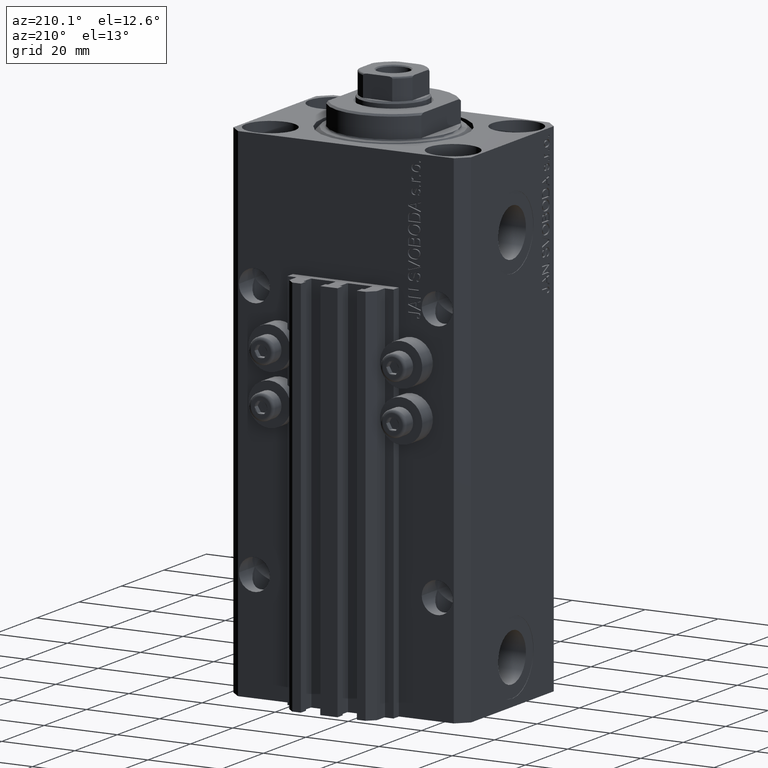
[diagram: clean part render]
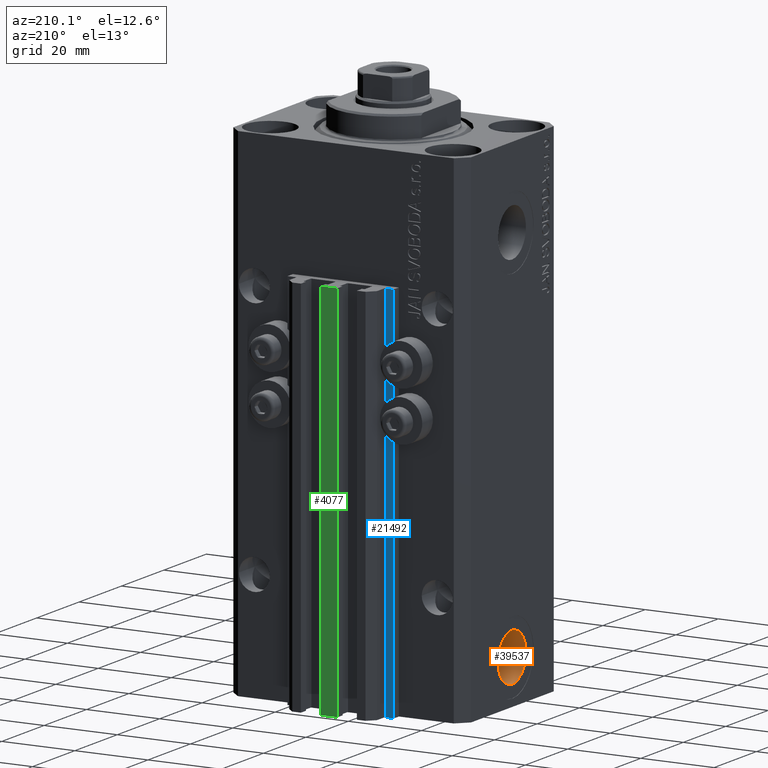
[diagram: same view with three faces highlighted in distinct colors, each labeled with its STEP entity id]
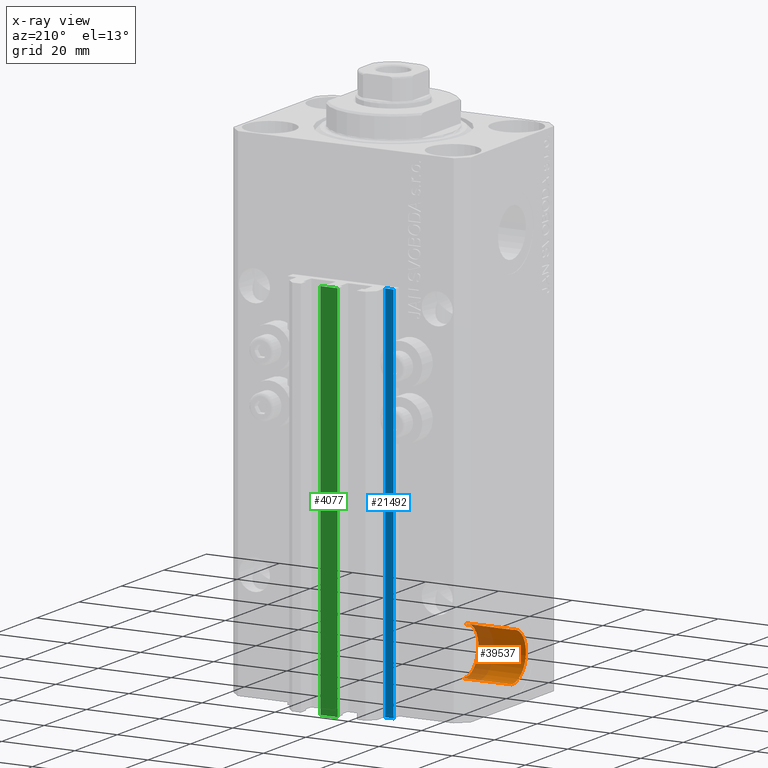
[diagram: x-ray of the same camera — body ghosted, the three highlighted faces saturated]
A machine part, auxiliary view with three faces highlighted in distinct colors.
The next image is the same camera in x-ray (body ghosted, the three faces saturated) — at least one of them is partly hidden behind the body in this view.
Their STEP definitions:

[orange] entity #39537 — the highlighted cylindrical surface (edge-blend (fillet) strip) has radius 6.58 mm, axis along (-1, -0, -0).
#2367 = VERTEX_POINT ( 'NONE', #29632 ) ;
#2925 = DIRECTION ( 'NONE',  ( 0.000000000000000000, 0.000000000000000000, 1.000000000000000000 ) ) ;
#3335 = ORIENTED_EDGE ( 'NONE', *, *, #9368, .F. ) ;
#3971 = CIRCLE ( 'NONE', #43709, 6.580000000000002736 ) ;
#4074 = AXIS2_PLACEMENT_3D ( 'NONE', #45100, #41200, #26797 ) ;
#4881 = CIRCLE ( 'NONE', #4074, 6.580000000000002736 ) ;
#5516 = VERTEX_POINT ( 'NONE', #46783 ) ;
#7529 = FACE_OUTER_BOUND ( 'NONE', #29247, .T. ) ;
#9227 = DIRECTION ( 'NONE',  ( -1.000000000000000000, -0.000000000000000000, -0.000000000000000000 ) ) ;
#9368 = EDGE_CURVE ( 'NONE', #33911, #34606, #3971, .T. ) ;
#10819 = CARTESIAN_POINT ( 'NONE',  ( -19.39999999999650271, -1.450226739550295657E-14, -131.5800000000000125 ) ) ;
#12234 = EDGE_CURVE ( 'NONE', #5516, #2367, #4881, .T. ) ;
#13251 = CARTESIAN_POINT ( 'NONE',  ( -19.39999999999650271, -1.530808498934191561E-14, -125.0000000000000000 ) ) ;
#14302 = ORIENTED_EDGE ( 'NONE', *, *, #42893, .F. ) ;
#15238 = ORIENTED_EDGE ( 'NONE', *, *, #12234, .T. ) ;
#15615 = EDGE_CURVE ( 'NONE', #33911, #5516, #44910, .T. ) ;
#18899 = CARTESIAN_POINT ( 'NONE',  ( -19.39999999999650271, -1.530808498934191561E-14, -118.4200000000000017 ) ) ;
#20125 = CARTESIAN_POINT ( 'NONE',  ( -19.39999999999650271, -1.530808498934191561E-14, -118.4200000000000017 ) ) ;
#21626 = VECTOR ( 'NONE', #42080, 1000.000000000000000 ) ;
#21682 = CARTESIAN_POINT ( 'NONE',  ( -19.39999999999650271, -1.530808498934191561E-14, -125.0000000000000000 ) ) ;
#22105 = VECTOR ( 'NONE', #9227, 1000.000000000000000 ) ;
#24212 = DIRECTION ( 'NONE',  ( 0.000000000000000000, 0.000000000000000000, 1.000000000000000000 ) ) ;
#24617 = AXIS2_PLACEMENT_3D ( 'NONE', #21682, #40456, #2925 ) ;
#26797 = DIRECTION ( 'NONE',  ( 0.000000000000000000, 0.000000000000000000, 1.000000000000000000 ) ) ;
#28163 = LINE ( 'NONE', #20125, #21626 ) ;
#29247 = EDGE_LOOP ( 'NONE', ( #3335, #30686, #15238, #14302 ) ) ;
#29632 = CARTESIAN_POINT ( 'NONE',  ( -32.39999999999650271, -1.530808498934191561E-14, -118.4200000000000017 ) ) ;
#30686 = ORIENTED_EDGE ( 'NONE', *, *, #15615, .T. ) ;
#33911 = VERTEX_POINT ( 'NONE', #10819 ) ;
#34403 = CARTESIAN_POINT ( 'NONE',  ( -19.39999999999650271, -1.450226739550295657E-14, -131.5800000000000125 ) ) ;
#34606 = VERTEX_POINT ( 'NONE', #18899 ) ;
#39537 = ADVANCED_FACE ( 'NONE', ( #7529 ), #47556, .F. ) ;
#39830 = DIRECTION ( 'NONE',  ( -1.000000000000000000, 0.000000000000000000, 0.000000000000000000 ) ) ;
#40456 = DIRECTION ( 'NONE',  ( -1.000000000000000000, -0.000000000000000000, -0.000000000000000000 ) ) ;
#41200 = DIRECTION ( 'NONE',  ( -1.000000000000000000, 0.000000000000000000, 0.000000000000000000 ) ) ;
#42080 = DIRECTION ( 'NONE',  ( -1.000000000000000000, -0.000000000000000000, -0.000000000000000000 ) ) ;
#42893 = EDGE_CURVE ( 'NONE', #34606, #2367, #28163, .T. ) ;
#43709 = AXIS2_PLACEMENT_3D ( 'NONE', #13251, #39830, #24212 ) ;
#44910 = LINE ( 'NONE', #34403, #22105 ) ;
#45100 = CARTESIAN_POINT ( 'NONE',  ( -32.39999999999650271, -1.530808498934191561E-14, -125.0000000000000000 ) ) ;
#46783 = CARTESIAN_POINT ( 'NONE',  ( -32.39999999999650271, -1.450226739550295657E-14, -131.5800000000000125 ) ) ;
#47556 = CYLINDRICAL_SURFACE ( 'NONE', #24617, 6.580000000000002736 ) ;

[blue] entity #21492 — the highlighted planar face has unit normal (0, 1, 0).
#856 = LINE ( 'NONE', #23527, #22114 ) ;
#955 = EDGE_LOOP ( 'NONE', ( #29009, #4838, #33077, #21695 ) ) ;
#1690 = DIRECTION ( 'NONE',  ( 0.000000000000000000, 0.000000000000000000, 1.000000000000000000 ) ) ;
#3394 = DIRECTION ( 'NONE',  ( 1.508455196501571429E-15, 1.000000000000000000, -0.000000000000000000 ) ) ;
#3778 = VERTEX_POINT ( 'NONE', #5349 ) ;
#4838 = ORIENTED_EDGE ( 'NONE', *, *, #35114, .F. ) ;
#4857 = CARTESIAN_POINT ( 'NONE',  ( -14.50000000000000000, 24.99999999999949196, -137.0000000000000000 ) ) ;
#5349 = CARTESIAN_POINT ( 'NONE',  ( -12.20000000000000107, 24.99999999999948841, -137.0000000000000000 ) ) ;
#6643 = LINE ( 'NONE', #47850, #47956 ) ;
#8419 = VERTEX_POINT ( 'NONE', #39338 ) ;
#11082 = VERTEX_POINT ( 'NONE', #32857 ) ;
#11315 = VECTOR ( 'NONE', #34566, 1000.000000000000000 ) ;
#12899 = LINE ( 'NONE', #4857, #31514 ) ;
#15785 = LINE ( 'NONE', #30659, #11315 ) ;
#21492 = ADVANCED_FACE ( 'NONE', ( #40468 ), #21932, .T. ) ;
#21695 = ORIENTED_EDGE ( 'NONE', *, *, #31160, .T. ) ;
#21865 = CARTESIAN_POINT ( 'NONE',  ( -12.20000000000000107, 24.99999999999948841, -33.00000000000000000 ) ) ;
#21932 = PLANE ( 'NONE',  #34664 ) ;
#22114 = VECTOR ( 'NONE', #27425, 1000.000000000000000 ) ;
#23527 = CARTESIAN_POINT ( 'NONE',  ( -12.20000000000000107, 24.99999999999948841, -33.00000000000000000 ) ) ;
#27425 = DIRECTION ( 'NONE',  ( -1.000000000000000000, 1.508455196501571429E-15, 0.000000000000000000 ) ) ;
#29009 = ORIENTED_EDGE ( 'NONE', *, *, #30034, .F. ) ;
#30034 = EDGE_CURVE ( 'NONE', #47333, #8419, #856, .T. ) ;
#30659 = CARTESIAN_POINT ( 'NONE',  ( -12.20000000000000107, 24.99999999999948841, -137.0000000000000000 ) ) ;
#31160 = EDGE_CURVE ( 'NONE', #11082, #8419, #12899, .T. ) ;
#31514 = VECTOR ( 'NONE', #1690, 1000.000000000000000 ) ;
#32857 = CARTESIAN_POINT ( 'NONE',  ( -14.50000000000000000, 24.99999999999949196, -137.0000000000000000 ) ) ;
#33077 = ORIENTED_EDGE ( 'NONE', *, *, #37088, .T. ) ;
#33134 = DIRECTION ( 'NONE',  ( -1.000000000000000000, 1.508455196501571429E-15, 0.000000000000000000 ) ) ;
#34566 = DIRECTION ( 'NONE',  ( -1.000000000000000000, 1.508455196501571429E-15, 0.000000000000000000 ) ) ;
#34664 = AXIS2_PLACEMENT_3D ( 'NONE', #36795, #3394, #33134 ) ;
#35114 = EDGE_CURVE ( 'NONE', #3778, #47333, #6643, .T. ) ;
#36795 = CARTESIAN_POINT ( 'NONE',  ( -12.20000000000000107, 24.99999999999948841, -137.0000000000000000 ) ) ;
#37088 = EDGE_CURVE ( 'NONE', #3778, #11082, #15785, .T. ) ;
#39338 = CARTESIAN_POINT ( 'NONE',  ( -14.50000000000000000, 24.99999999999949196, -33.00000000000000000 ) ) ;
#40468 = FACE_OUTER_BOUND ( 'NONE', #955, .T. ) ;
#43233 = DIRECTION ( 'NONE',  ( 0.000000000000000000, 0.000000000000000000, 1.000000000000000000 ) ) ;
#47333 = VERTEX_POINT ( 'NONE', #21865 ) ;
#47850 = CARTESIAN_POINT ( 'NONE',  ( -12.20000000000000107, 24.99999999999948841, -137.0000000000000000 ) ) ;
#47956 = VECTOR ( 'NONE', #43233, 1000.000000000000000 ) ;

[green] entity #4077 — the highlighted planar face has unit normal (0, -1, 0).
#1394 = ORIENTED_EDGE ( 'NONE', *, *, #9490, .F. ) ;
#1843 = LINE ( 'NONE', #38902, #11179 ) ;
#2006 = VECTOR ( 'NONE', #3845, 1000.000000000000000 ) ;
#3468 = LINE ( 'NONE', #18322, #14099 ) ;
#3598 = VECTOR ( 'NONE', #4461, 1000.000000000000000 ) ;
#3845 = DIRECTION ( 'NONE',  ( 1.000000000000000000, 0.000000000000000000, 0.000000000000000000 ) ) ;
#4077 = ADVANCED_FACE ( 'NONE', ( #12794 ), #16678, .F. ) ;
#4461 = DIRECTION ( 'NONE',  ( 1.000000000000000000, 0.000000000000000000, 0.000000000000000000 ) ) ;
#5386 = AXIS2_PLACEMENT_3D ( 'NONE', #20105, #31306, #27413 ) ;
#9490 = EDGE_CURVE ( 'NONE', #28929, #12624, #3468, .T. ) ;
#11179 = VECTOR ( 'NONE', #17426, 1000.000000000000000 ) ;
#12624 = VERTEX_POINT ( 'NONE', #42543 ) ;
#12794 = FACE_OUTER_BOUND ( 'NONE', #23451, .T. ) ;
#14099 = VECTOR ( 'NONE', #29537, 1000.000000000000000 ) ;
#14364 = EDGE_CURVE ( 'NONE', #21067, #32605, #1843, .T. ) ;
#16678 = PLANE ( 'NONE',  #5386 ) ;
#17426 = DIRECTION ( 'NONE',  ( 0.000000000000000000, 0.000000000000000000, 1.000000000000000000 ) ) ;
#18322 = CARTESIAN_POINT ( 'NONE',  ( 2.349999999999999645, 30.49999999999949907, -137.0000000000000000 ) ) ;
#20105 = CARTESIAN_POINT ( 'NONE',  ( -2.350000000000003197, 30.49999999999949907, -137.0000000000000000 ) ) ;
#21067 = VERTEX_POINT ( 'NONE', #39334 ) ;
#23451 = EDGE_LOOP ( 'NONE', ( #41305, #1394, #35698, #28310 ) ) ;
#26153 = LINE ( 'NONE', #45184, #3598 ) ;
#27413 = DIRECTION ( 'NONE',  ( 0.000000000000000000, -0.000000000000000000, -1.000000000000000000 ) ) ;
#28310 = ORIENTED_EDGE ( 'NONE', *, *, #14364, .T. ) ;
#28929 = VERTEX_POINT ( 'NONE', #42118 ) ;
#29537 = DIRECTION ( 'NONE',  ( 0.000000000000000000, 0.000000000000000000, 1.000000000000000000 ) ) ;
#31306 = DIRECTION ( 'NONE',  ( 0.000000000000000000, -1.000000000000000000, 0.000000000000000000 ) ) ;
#32605 = VERTEX_POINT ( 'NONE', #34968 ) ;
#34968 = CARTESIAN_POINT ( 'NONE',  ( -2.350000000000003197, 30.49999999999949907, -33.00000000000000000 ) ) ;
#35698 = ORIENTED_EDGE ( 'NONE', *, *, #36337, .F. ) ;
#36337 = EDGE_CURVE ( 'NONE', #21067, #28929, #26153, .T. ) ;
#38478 = EDGE_CURVE ( 'NONE', #32605, #12624, #44579, .T. ) ;
#38902 = CARTESIAN_POINT ( 'NONE',  ( -2.350000000000003197, 30.49999999999949907, -137.0000000000000000 ) ) ;
#39334 = CARTESIAN_POINT ( 'NONE',  ( -2.350000000000003197, 30.49999999999949907, -137.0000000000000000 ) ) ;
#40918 = CARTESIAN_POINT ( 'NONE',  ( -2.350000000000003197, 30.49999999999949907, -33.00000000000000000 ) ) ;
#41305 = ORIENTED_EDGE ( 'NONE', *, *, #38478, .T. ) ;
#42118 = CARTESIAN_POINT ( 'NONE',  ( 2.349999999999999645, 30.49999999999949907, -137.0000000000000000 ) ) ;
#42543 = CARTESIAN_POINT ( 'NONE',  ( 2.349999999999999645, 30.49999999999949907, -33.00000000000000000 ) ) ;
#44579 = LINE ( 'NONE', #40918, #2006 ) ;
#45184 = CARTESIAN_POINT ( 'NONE',  ( -2.350000000000003197, 30.49999999999949907, -137.0000000000000000 ) ) ;